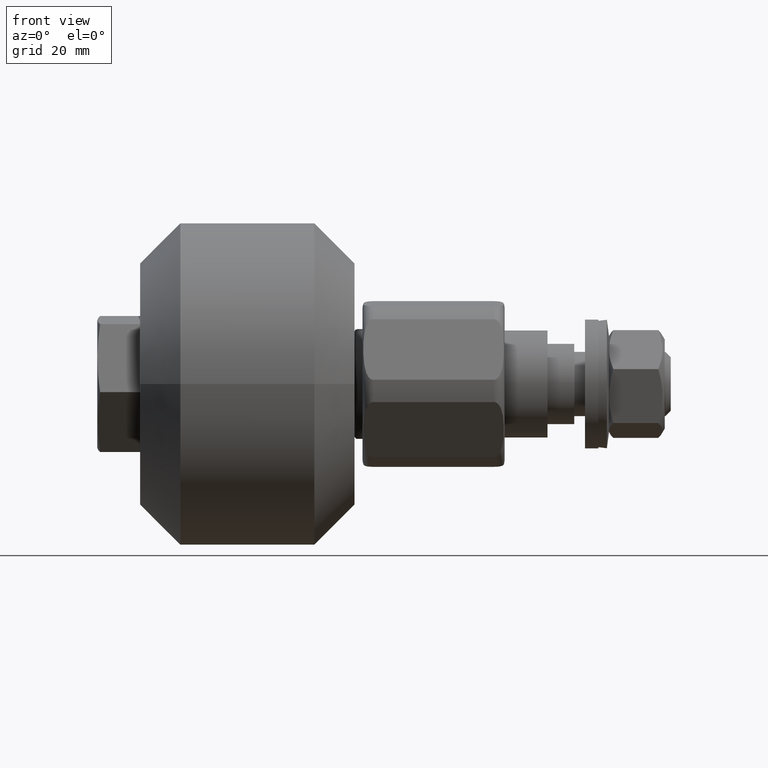
[diagram: clean part render]
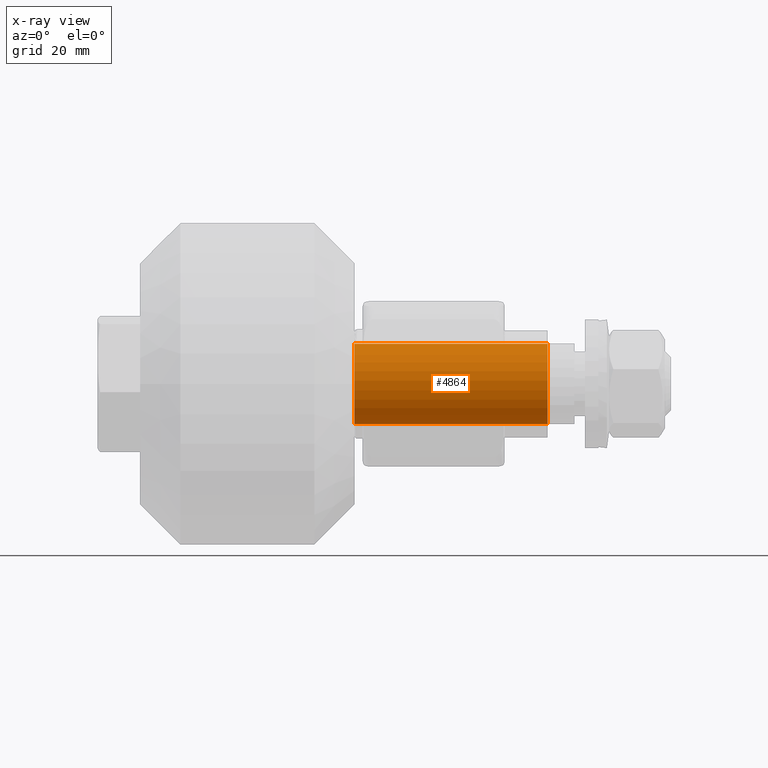
[diagram: x-ray — body ghosted, one internal face saturated and labeled with its STEP entity id]
A machine part, front view, then the same camera in x-ray: the body is ghosted and one INTERNAL B-rep face — a face not visible from any outside direction — is saturated and labeled: STEP entity #4864.
In plain terms, the highlighted cylindrical surface (bore or boss wall) has radius 7.5 mm, axis along (1, 0, -0).
Its self-contained STEP definition (entity closure, byte-faithful):
#328=CYLINDRICAL_SURFACE('',#5376,7.5);
#608=FACE_OUTER_BOUND('',#887,.T.);
#887=EDGE_LOOP('',(#3429,#3430,#3431,#3432));
#1173=LINE('',#7701,#1463);
#1463=VECTOR('',#6038,7.5);
#1750=CIRCLE('',#5338,7.49999999999999);
#1769=CIRCLE('',#5375,7.50000000000001);
#2016=VERTEX_POINT('',#7344);
#2047=VERTEX_POINT('',#7698);
#2543=EDGE_CURVE('',#2016,#2016,#1750,.T.);
#2589=EDGE_CURVE('',#2047,#2047,#1769,.T.);
#2590=EDGE_CURVE('',#2047,#2016,#1173,.T.);
#3429=ORIENTED_EDGE('',*,*,#2589,.T.);
#3430=ORIENTED_EDGE('',*,*,#2590,.T.);
#3431=ORIENTED_EDGE('',*,*,#2543,.F.);
#3432=ORIENTED_EDGE('',*,*,#2590,.F.);
#4864=ADVANCED_FACE('',(#608),#328,.F.);
#5338=AXIS2_PLACEMENT_3D('',#7345,#5947,#5948);
#5375=AXIS2_PLACEMENT_3D('',#7699,#6034,#6035);
#5376=AXIS2_PLACEMENT_3D('',#7700,#6036,#6037);
#5947=DIRECTION('center_axis',(1.,0.,0.));
#5948=DIRECTION('ref_axis',(0.,1.,0.));
#6034=DIRECTION('center_axis',(1.,0.,0.));
#6035=DIRECTION('ref_axis',(0.,1.,0.));
#6036=DIRECTION('center_axis',(1.,0.,0.));
#6037=DIRECTION('ref_axis',(0.,1.,0.));
#6038=DIRECTION('',(-1.,0.,0.));
#7344=CARTESIAN_POINT('',(-14.75,-7.5,-9.18485099360515E-16));
#7345=CARTESIAN_POINT('Origin',(-14.75,0.,0.));
#7698=CARTESIAN_POINT('',(21.25,-7.5,-9.18485099360515E-16));
#7699=CARTESIAN_POINT('Origin',(21.25,0.,0.));
#7700=CARTESIAN_POINT('Origin',(3.25,0.,0.));
#7701=CARTESIAN_POINT('',(3.25,-7.5,-9.18485099360515E-16));